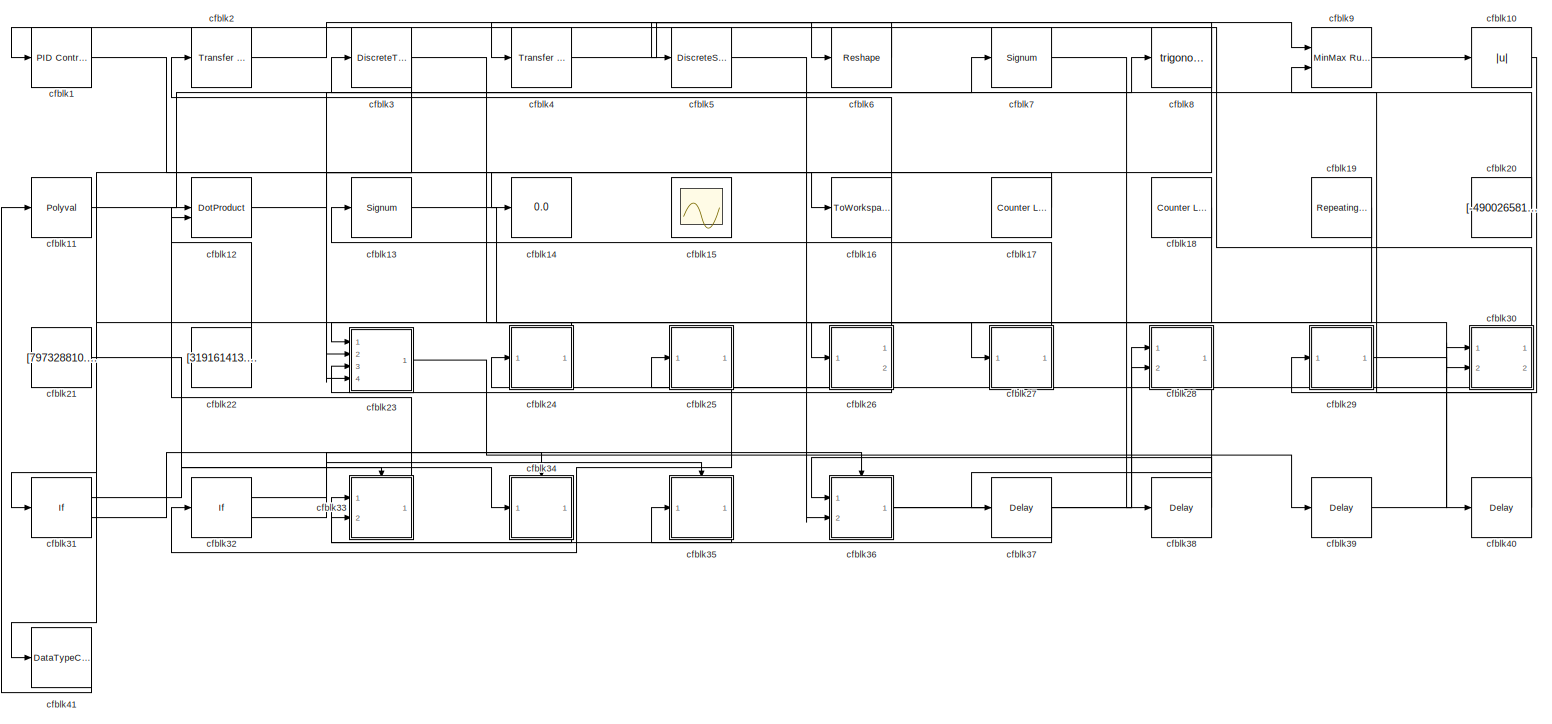
[diagram: root canvas - part 1/1, most of the canvas]
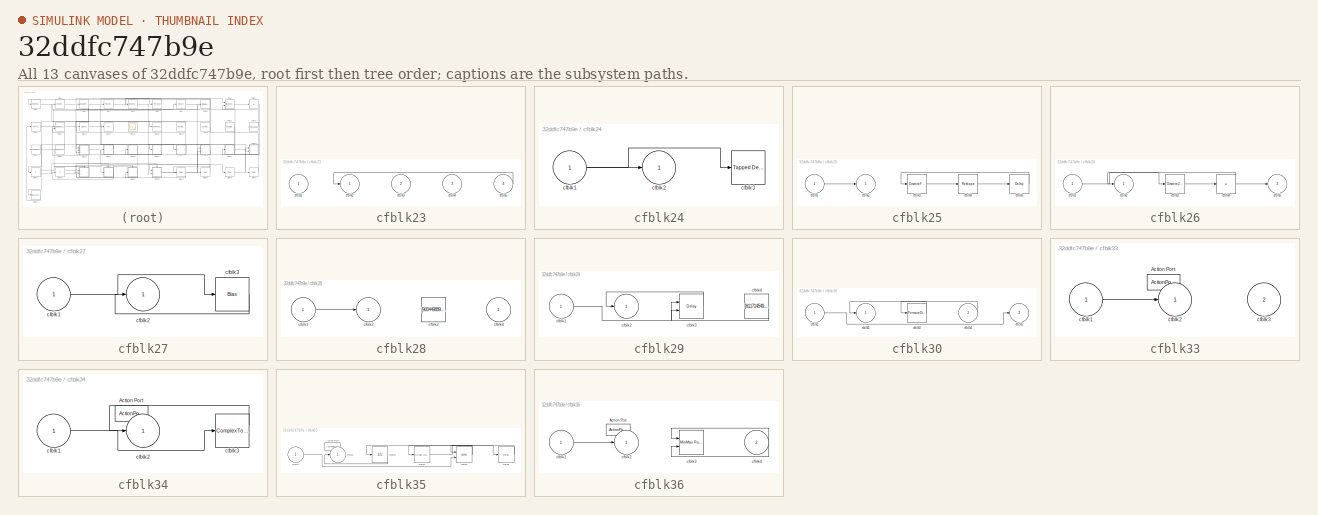
[diagram: thumbnail index - all 13 canvases of the model, root first then tree order]
MODEL slx_32ddfc747b9e
KIND model
CONFIG AbsTol = auto
CONFIG EnableMultiTasking = off
CONFIG FixedStep = auto
CONFIG MaxStep = auto
CONFIG MinStep = auto
CONFIG RelTol = 1e-3
CONFIG SampleTimeConstraint = Unconstrained
CONFIG SolverName = VariableStepAuto
CONFIG StartTime = 0.0
CONFIG StopTime = 10.0
BLOCK [Reference] cfblk1  REF=slpidlib/PID Controller
  Ports = [1, 1]
  SourceBlock = slpidlib/PID Controller
  SourceProductBaseCode = SL
  SourceType = PID 1dof
BLOCK [Abs] cfblk10
  SaturateOnIntegerOverflow = off
BLOCK [Polyval] cfblk11
  Coefs = [ +2.081618890e-019, -1.441693666e-014, +4.719686976e-010, -8.536869453e-006, +1.621573104e-001, -8.087801117e+001 ]
BLOCK [DotProduct] cfblk12
  OutDataTypeStr = Inherit: Inherit via internal rule
BLOCK [Signum] cfblk13
BLOCK [Display] cfblk14
  Decimation = 1
  Ports = [1]
BLOCK [Scope] cfblk15
  Floating = on
  NumInputPorts = 1
  Ports = []
BLOCK [ToWorkspace] cfblk16
  FixptAsFi = on
  MaxDataPoints = inf
  Ports = [1]
  SampleTime = -1
  SaveFormat = Timeseries
  VariableName = xakhjzg
BLOCK [Reference] cfblk17  REF=simulink/Sources/Counter
Limited
  Ports = [0, 1]
  SourceBlock = simulink/Sources/Counter\nLimited
  SourceProductBaseCode = SL
  SourceType = Counter Limited
BLOCK [Reference] cfblk18  REF=simulink/Sources/Counter
Limited
  Ports = [0, 1]
  SourceBlock = simulink/Sources/Counter\nLimited
  SourceProductBaseCode = SL
  SourceType = Counter Limited
BLOCK [Reference] cfblk19  REF=simulink/Sources/Repeating
Sequence
  Ports = [0, 1]
  SourceBlock = simulink/Sources/Repeating\nSequence
  SourceProductBaseCode = SL
  SourceType = Repeating table
BLOCK [Reference] cfblk2  REF=simulink/Discrete/Transfer Fcn
Real Zero
  Ports = [1, 1]
  SourceBlock = simulink/Discrete/Transfer Fcn\nReal Zero
  SourceProductBaseCode = SL
  SourceType = Transfer Fcn Real Zero
BLOCK [Constant] cfblk20
  SampleTime = 1
  Value = [-490026581.432358]
BLOCK [Constant] cfblk21
  SampleTime = 1
  Value = [797328810.757591]
BLOCK [Constant] cfblk22
  SampleTime = 1
  Value = [319161413.306613]
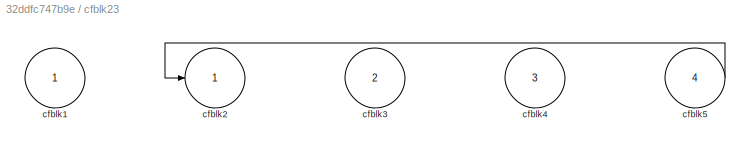
BLOCK [SubSystem] cfblk23
  Ports = [4, 1]
  RequestExecContextInheritance = off
BLOCK [Inport] cfblk23/cfblk1
BLOCK [Outport] cfblk23/cfblk2
BLOCK [Inport] cfblk23/cfblk3
  Port = 2
BLOCK [Inport] cfblk23/cfblk4
  Port = 3
BLOCK [Inport] cfblk23/cfblk5
  Port = 4
BLOCK [SubSystem] cfblk24
  Ports = [1, 1]
  RequestExecContextInheritance = off
BLOCK [Inport] cfblk24/cfblk1
BLOCK [Outport] cfblk24/cfblk2
BLOCK [Reference] cfblk24/cfblk3  REF=simulink/Discrete/Tapped Delay
  Ports = [1, 1]
  SourceBlock = simulink/Discrete/Tapped Delay
  SourceProductBaseCode = SL
  SourceType = Tapped Delay Line
BLOCK [SubSystem] cfblk25
  Ports = [1, 1]
  RequestExecContextInheritance = off
BLOCK [Inport] cfblk25/cfblk1
BLOCK [Outport] cfblk25/cfblk2
BLOCK [DiscreteFir] cfblk25/cfblk3
  InputPortMap = u0
  OutputPortMap = o0
  Ports = [1, 1]
  SampleTime = 1
BLOCK [Reshape] cfblk25/cfblk4
  Ports = [1, 1]
BLOCK [Delay] cfblk25/cfblk5
  InputPortMap = u0
  Ports = [1, 1]
  SampleTime = 1
BLOCK [SubSystem] cfblk26
  Ports = [1, 2]
  RequestExecContextInheritance = off
BLOCK [Inport] cfblk26/cfblk1
BLOCK [Outport] cfblk26/cfblk2
BLOCK [DiscreteZeroPole] cfblk26/cfblk3
  Gain = 1
  Poles = [0 0.5]
BLOCK [Product] cfblk26/cfblk4
  Inputs = *
  Ports = [1, 1]
BLOCK [Outport] cfblk26/cfblk5
  Port = 2
BLOCK [SubSystem] cfblk27
  Ports = [1, 1]
  RequestExecContextInheritance = off
BLOCK [Inport] cfblk27/cfblk1
BLOCK [Outport] cfblk27/cfblk2
BLOCK [Bias] cfblk27/cfblk3
  Bias = [-16445692.538380]
  SaturateOnIntegerOverflow = off
BLOCK [SubSystem] cfblk28
  Ports = [2, 1]
  RequestExecContextInheritance = off
BLOCK [Inport] cfblk28/cfblk1
BLOCK [Outport] cfblk28/cfblk2
BLOCK [Constant] cfblk28/cfblk3
  SampleTime = 1
  Value = [900449889.391487]
BLOCK [Inport] cfblk28/cfblk4
  Port = 2
BLOCK [SubSystem] cfblk29
  Ports = [1, 1]
  RequestExecContextInheritance = off
BLOCK [Inport] cfblk29/cfblk1
BLOCK [Outport] cfblk29/cfblk2
BLOCK [Delay] cfblk29/cfblk3
  DelayLengthSource = Input port
  InputPortMap = u0,p1
  Ports = [2, 1]
  SampleTime = 1
BLOCK [Constant] cfblk29/cfblk4
  SampleTime = 1
  Value = [611714549.665931]
BLOCK [DiscreteTransferFcn] cfblk3
  InputPortMap = u0
  Ports = [1, 1]
  SampleTime = 1
BLOCK [SubSystem] cfblk30
  Ports = [2, 2]
  RequestExecContextInheritance = off
BLOCK [Inport] cfblk30/cfblk1
BLOCK [Outport] cfblk30/cfblk2
BLOCK [PermuteDimensions] cfblk30/cfblk3
BLOCK [Inport] cfblk30/cfblk4
  Port = 2
BLOCK [Outport] cfblk30/cfblk5
  Port = 2
BLOCK [If] cfblk31
  IfExpression = u1 >= 0
  Ports = [1, 2]
  SampleTime = 1
BLOCK [If] cfblk32
  IfExpression = u1 >= 0
  Ports = [1, 2]
  SampleTime = 1
BLOCK [SubSystem] cfblk33
  Ports = [2, 1, 0, 0, 0, 0, 0, 1]
  RequestExecContextInheritance = off
  TreatAsAtomicUnit = on
BLOCK [ActionPort] cfblk33/Action Port
  ActionPortLabel = if(u1 >= 0)
BLOCK [Inport] cfblk33/cfblk1
BLOCK [Outport] cfblk33/cfblk2
BLOCK [Inport] cfblk33/cfblk3
  Port = 2
BLOCK [SubSystem] cfblk34
  Ports = [1, 1, 0, 0, 0, 0, 0, 1]
  RequestExecContextInheritance = off
  TreatAsAtomicUnit = on
BLOCK [ActionPort] cfblk34/Action Port
  ActionPortLabel = else
BLOCK [Inport] cfblk34/cfblk1
BLOCK [Outport] cfblk34/cfblk2
BLOCK [ComplexToRealImag] cfblk34/cfblk3
  Ports = [1, 2]
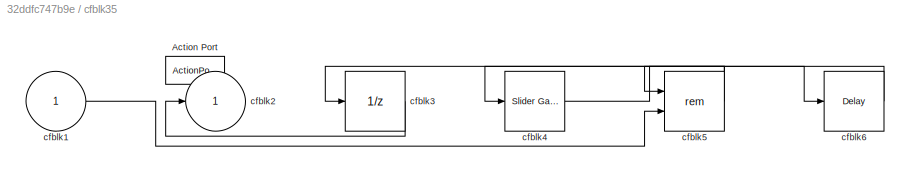
BLOCK [SubSystem] cfblk35
  Ports = [1, 1, 0, 0, 0, 0, 0, 1]
  RequestExecContextInheritance = off
  TreatAsAtomicUnit = on
BLOCK [ActionPort] cfblk35/Action Port
  ActionPortLabel = if(u1 >= 0)
BLOCK [Inport] cfblk35/cfblk1
BLOCK [Outport] cfblk35/cfblk2
BLOCK [UnitDelay] cfblk35/cfblk3
  HasFrameUpgradeWarning = on
  SampleTime = -1
BLOCK [Reference] cfblk35/cfblk4  REF=simulink/Math
Operations/Slider
Gain
  Ports = [1, 1]
  SourceBlock = simulink/Math\nOperations/Slider\nGain
  SourceProductBaseCode = SL
  SourceType = Slider Gain
BLOCK [Math] cfblk35/cfblk5
  Operator = rem
  Ports = [2, 1]
BLOCK [Delay] cfblk35/cfblk6
  InputPortMap = u0
  Ports = [1, 1]
BLOCK [SubSystem] cfblk36
  Ports = [2, 1, 0, 0, 0, 0, 0, 1]
  RequestExecContextInheritance = off
  TreatAsAtomicUnit = on
BLOCK [ActionPort] cfblk36/Action Port
  ActionPortLabel = else
BLOCK [Inport] cfblk36/cfblk1
BLOCK [Outport] cfblk36/cfblk2
BLOCK [Reference] cfblk36/cfblk3  REF=simulink/Math
Operations/MinMax
Running
Resettable
  Ports = [2, 1]
  SourceBlock = simulink/Math\nOperations/MinMax\nRunning\nResettable
  SourceProductBaseCode = SL
  SourceType = MinMax Running Resettable
BLOCK [Inport] cfblk36/cfblk4
  Port = 2
BLOCK [Delay] cfblk37
  InputPortMap = u0
  Ports = [1, 1]
  SampleTime = 1
BLOCK [Delay] cfblk38
  InputPortMap = u0
  Ports = [1, 1]
  SampleTime = 1
BLOCK [Delay] cfblk39
  InputPortMap = u0
  Ports = [1, 1]
  SampleTime = 1
BLOCK [Reference] cfblk4  REF=simulink/Discrete/Transfer Fcn
Real Zero
  Ports = [1, 1]
  SourceBlock = simulink/Discrete/Transfer Fcn\nReal Zero
  SourceProductBaseCode = SL
  SourceType = Transfer Fcn Real Zero
BLOCK [Delay] cfblk40
  InputPortMap = u0
  Ports = [1, 1]
  SampleTime = 1
BLOCK [DataTypeConversion] cfblk41
  RndMeth = Floor
  SaturateOnIntegerOverflow = off
BLOCK [DiscreteStateSpace] cfblk5
BLOCK [Reshape] cfblk6
  Ports = [1, 1]
BLOCK [Signum] cfblk7
BLOCK [Trigonometry] cfblk8
  Ports = [1, 1]
BLOCK [Reference] cfblk9  REF=simulink/Math
Operations/MinMax
Running
Resettable
  Ports = [2, 1]
  SourceBlock = simulink/Math\nOperations/MinMax\nRunning\nResettable
  SourceProductBaseCode = SL
  SourceType = MinMax Running Resettable
LINE cfblk10:1 -> cfblk29:1
LINE cfblk11:1 -> cfblk8:1
LINE cfblk12:1 -> cfblk7:1
LINE cfblk13:1 -> cfblk30:2
LINE cfblk17:1 -> cfblk14:1
LINE cfblk18:1 -> cfblk41:1
LINE cfblk19:1 -> cfblk26:1
LINE cfblk1:1 -> cfblk16:1
LINE cfblk20:1 -> cfblk3:1
LINE cfblk21:1 -> cfblk34:1
LINE cfblk22:1 -> cfblk12:2
LINE cfblk23/cfblk5:1 -> cfblk23/cfblk2:1
LINE cfblk23:1 -> cfblk39:1
NET cfblk24/cfblk1:1 -> cfblk24/cfblk2:1, cfblk24/cfblk3:1
LINE cfblk24:1 -> cfblk23:1
LINE cfblk25/cfblk1:1 -> cfblk25/cfblk2:1
LINE cfblk25/cfblk3:1 -> cfblk25/cfblk4:1
LINE cfblk25/cfblk4:1 -> cfblk25/cfblk5:1
LINE cfblk25/cfblk5:1 -> cfblk25/cfblk3:1
LINE cfblk25:1 -> cfblk32:1
LINE cfblk26/cfblk1:1 -> cfblk26/cfblk3:1
LINE cfblk26/cfblk3:1 -> cfblk26/cfblk4:1
NET cfblk26/cfblk4:1 -> cfblk26/cfblk2:1, cfblk26/cfblk5:1
LINE cfblk26:1 -> cfblk2:1
NET cfblk26:2 -> cfblk23:3, cfblk25:1
LINE cfblk27/cfblk1:1 -> cfblk27/cfblk3:1
LINE cfblk27/cfblk3:1 -> cfblk27/cfblk2:1
LINE cfblk27:1 -> cfblk13:1
LINE cfblk28/cfblk1:1 -> cfblk28/cfblk2:1
LINE cfblk28:1 -> cfblk37:1
LINE cfblk29/cfblk1:1 -> cfblk29/cfblk3:1
LINE cfblk29/cfblk3:1 -> cfblk29/cfblk2:1
LINE cfblk29/cfblk4:1 -> cfblk29/cfblk3:2
LINE cfblk29:1 -> cfblk40:1
LINE cfblk2:1 -> cfblk6:1
LINE cfblk30/cfblk1:1 -> cfblk30/cfblk5:1
LINE cfblk30/cfblk3:1 -> cfblk30/cfblk2:1
LINE cfblk30/cfblk4:1 -> cfblk30/cfblk3:1
LINE cfblk30:1 -> cfblk1:1
LINE cfblk30:2 -> cfblk24:1
LINE cfblk31:1 -> cfblk33:ifaction
LINE cfblk31:2 -> cfblk34:ifaction
LINE cfblk32:1 -> cfblk35:ifaction
LINE cfblk32:2 -> cfblk36:ifaction
LINE cfblk33/cfblk1:1 -> cfblk33/cfblk2:1
LINE cfblk33:1 -> cfblk12:1
LINE cfblk34/cfblk1:1 -> cfblk34/cfblk3:1
LINE cfblk34/cfblk3:1 -> cfblk34/cfblk2:1
LINE cfblk34:1 -> cfblk33:1
LINE cfblk35/cfblk1:1 -> cfblk35/cfblk5:2
LINE cfblk35/cfblk3:1 -> cfblk35/cfblk2:1
LINE cfblk35/cfblk4:1 -> cfblk35/cfblk6:1
NET cfblk35/cfblk5:1 -> cfblk35/cfblk3:1, cfblk35/cfblk4:1
LINE cfblk35/cfblk6:1 -> cfblk35/cfblk5:1
LINE cfblk35:1 -> cfblk33:2
LINE cfblk36/cfblk1:1 -> cfblk36/cfblk2:1
NET cfblk36/cfblk4:1 -> cfblk36/cfblk3:1, cfblk36/cfblk3:2
NET cfblk36:1 -> cfblk28:1, cfblk28:2
LINE cfblk37:1 -> cfblk35:1
LINE cfblk38:1 -> cfblk36:1
LINE cfblk39:1 -> cfblk30:1
NET cfblk3:1 -> cfblk23:2, cfblk23:4, cfblk27:1
LINE cfblk40:1 -> cfblk9:2
LINE cfblk41:1 -> cfblk11:1
LINE cfblk4:1 -> cfblk9:1
LINE cfblk5:1 -> cfblk36:2
LINE cfblk6:1 -> cfblk5:1
LINE cfblk7:1 -> cfblk38:1
NET cfblk8:1 -> cfblk31:1, cfblk4:1
LINE cfblk9:1 -> cfblk10:1
note: NET lines group one-source signal fan-out (src -> all destinations, sorted); 1:1 wires keep LINE
